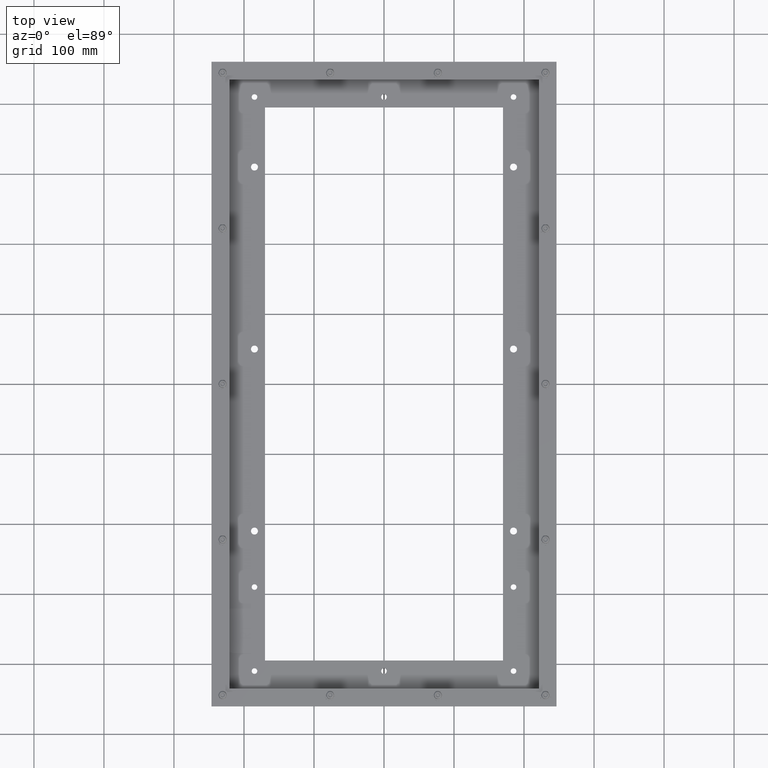
[diagram: clean part render]
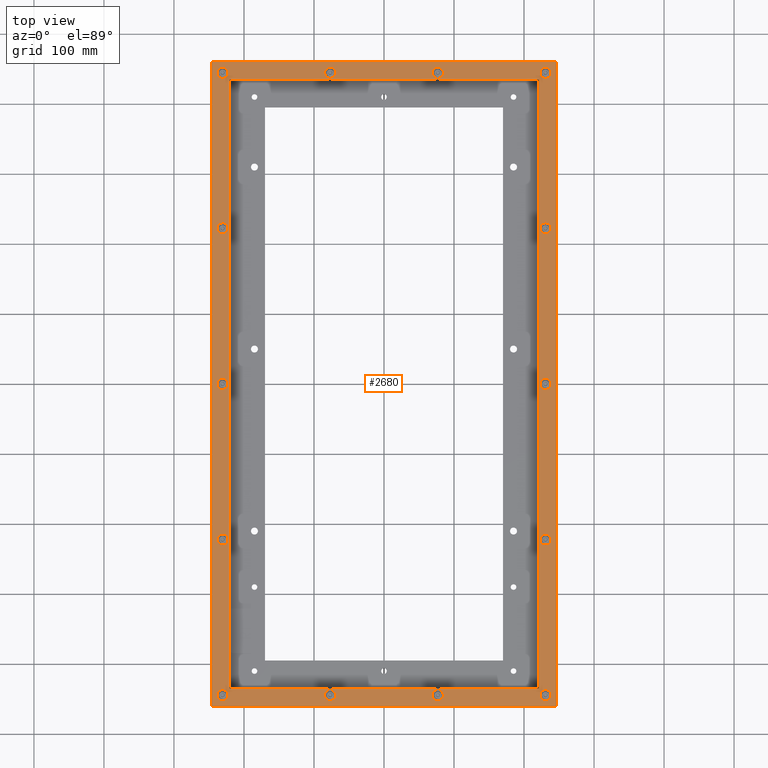
[diagram: same view with one face highlighted and labeled with its STEP entity id]
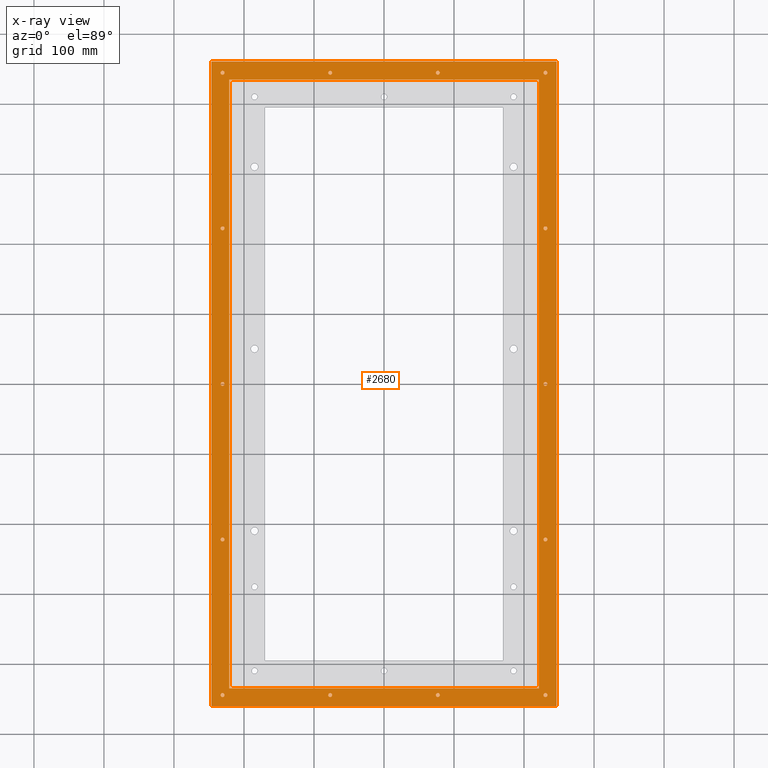
[diagram: x-ray of the same camera — body ghosted, the highlighted face saturated]
A machine part, top view. The second image highlights one B-rep face of the part: STEP entity #2680.
The next image is the same camera in x-ray: the body ghosted, the highlighted face saturated — about 0% of this face is hidden behind the body in this view.
In plain terms, the highlighted planar face has unit normal (0, 0, 1).
Its self-contained STEP definition (entity closure, byte-faithful):
#257=FACE_BOUND('',#833,.T.);
#258=FACE_BOUND('',#834,.T.);
#259=FACE_BOUND('',#835,.T.);
#260=FACE_BOUND('',#836,.T.);
#261=FACE_BOUND('',#837,.T.);
#262=FACE_BOUND('',#838,.T.);
#263=FACE_BOUND('',#839,.T.);
#264=FACE_BOUND('',#840,.T.);
#265=FACE_BOUND('',#841,.T.);
#266=FACE_BOUND('',#842,.T.);
#267=FACE_BOUND('',#843,.T.);
#268=FACE_BOUND('',#844,.T.);
#269=FACE_BOUND('',#845,.T.);
#270=FACE_BOUND('',#846,.T.);
#271=FACE_BOUND('',#847,.T.);
#376=CIRCLE('',#2876,0.109375);
#378=CIRCLE('',#2879,0.109375);
#380=CIRCLE('',#2882,0.109375);
#382=CIRCLE('',#2885,0.109375);
#384=CIRCLE('',#2888,0.109375);
#386=CIRCLE('',#2891,0.109375);
#388=CIRCLE('',#2894,0.109375);
#390=CIRCLE('',#2897,0.109375);
#392=CIRCLE('',#2900,0.109375);
#394=CIRCLE('',#2903,0.109375);
#396=CIRCLE('',#2906,0.109375);
#398=CIRCLE('',#2909,0.109375);
#400=CIRCLE('',#2912,0.109375);
#402=CIRCLE('',#2915,0.109375);
#581=FACE_OUTER_BOUND('',#832,.T.);
#832=EDGE_LOOP('',(#2036,#2037,#2038,#2039));
#833=EDGE_LOOP('',(#2040));
#834=EDGE_LOOP('',(#2041));
#835=EDGE_LOOP('',(#2042));
#836=EDGE_LOOP('',(#2043));
#837=EDGE_LOOP('',(#2044));
#838=EDGE_LOOP('',(#2045));
#839=EDGE_LOOP('',(#2046));
#840=EDGE_LOOP('',(#2047));
#841=EDGE_LOOP('',(#2048));
#842=EDGE_LOOP('',(#2049));
#843=EDGE_LOOP('',(#2050));
#844=EDGE_LOOP('',(#2051));
#845=EDGE_LOOP('',(#2052));
#846=EDGE_LOOP('',(#2053));
#847=EDGE_LOOP('',(#2054,#2055,#2056,#2057));
#1009=LINE('',#4147,#1150);
#1013=LINE('',#4155,#1154);
#1016=LINE('',#4161,#1157);
#1019=LINE('',#4166,#1160);
#1021=LINE('',#4171,#1162);
#1025=LINE('',#4179,#1166);
#1028=LINE('',#4185,#1169);
#1031=LINE('',#4190,#1172);
#1150=VECTOR('',#3401,34.25);
#1154=VECTOR('',#3407,17.40625);
#1157=VECTOR('',#3412,34.25);
#1160=VECTOR('',#3417,17.40625);
#1162=VECTOR('',#3421,36.25);
#1166=VECTOR('',#3427,19.40625);
#1169=VECTOR('',#3432,36.25);
#1172=VECTOR('',#3437,19.40625);
#1340=VERTEX_POINT('',#4077);
#1342=VERTEX_POINT('',#4082);
#1344=VERTEX_POINT('',#4087);
#1346=VERTEX_POINT('',#4092);
#1348=VERTEX_POINT('',#4097);
#1350=VERTEX_POINT('',#4102);
#1352=VERTEX_POINT('',#4107);
#1354=VERTEX_POINT('',#4112);
#1356=VERTEX_POINT('',#4117);
#1358=VERTEX_POINT('',#4122);
#1360=VERTEX_POINT('',#4127);
#1362=VERTEX_POINT('',#4132);
#1364=VERTEX_POINT('',#4137);
#1366=VERTEX_POINT('',#4142);
#1367=VERTEX_POINT('',#4145);
#1368=VERTEX_POINT('',#4146);
#1371=VERTEX_POINT('',#4154);
#1373=VERTEX_POINT('',#4160);
#1375=VERTEX_POINT('',#4169);
#1376=VERTEX_POINT('',#4170);
#1379=VERTEX_POINT('',#4178);
#1381=VERTEX_POINT('',#4184);
#1588=EDGE_CURVE('',#1340,#1340,#376,.T.);
#1590=EDGE_CURVE('',#1342,#1342,#378,.T.);
#1592=EDGE_CURVE('',#1344,#1344,#380,.T.);
#1594=EDGE_CURVE('',#1346,#1346,#382,.T.);
#1596=EDGE_CURVE('',#1348,#1348,#384,.T.);
#1598=EDGE_CURVE('',#1350,#1350,#386,.T.);
#1600=EDGE_CURVE('',#1352,#1352,#388,.T.);
#1602=EDGE_CURVE('',#1354,#1354,#390,.T.);
#1604=EDGE_CURVE('',#1356,#1356,#392,.T.);
#1606=EDGE_CURVE('',#1358,#1358,#394,.T.);
#1608=EDGE_CURVE('',#1360,#1360,#396,.T.);
#1610=EDGE_CURVE('',#1362,#1362,#398,.T.);
#1612=EDGE_CURVE('',#1364,#1364,#400,.T.);
#1614=EDGE_CURVE('',#1366,#1366,#402,.T.);
#1615=EDGE_CURVE('',#1367,#1368,#1009,.T.);
#1619=EDGE_CURVE('',#1368,#1371,#1013,.T.);
#1622=EDGE_CURVE('',#1371,#1373,#1016,.T.);
#1625=EDGE_CURVE('',#1373,#1367,#1019,.T.);
#1627=EDGE_CURVE('',#1375,#1376,#1021,.T.);
#1631=EDGE_CURVE('',#1376,#1379,#1025,.T.);
#1634=EDGE_CURVE('',#1379,#1381,#1028,.T.);
#1637=EDGE_CURVE('',#1381,#1375,#1031,.T.);
#2036=ORIENTED_EDGE('',*,*,#1627,.F.);
#2037=ORIENTED_EDGE('',*,*,#1637,.F.);
#2038=ORIENTED_EDGE('',*,*,#1634,.F.);
#2039=ORIENTED_EDGE('',*,*,#1631,.F.);
#2040=ORIENTED_EDGE('',*,*,#1588,.T.);
#2041=ORIENTED_EDGE('',*,*,#1590,.T.);
#2042=ORIENTED_EDGE('',*,*,#1592,.T.);
#2043=ORIENTED_EDGE('',*,*,#1594,.T.);
#2044=ORIENTED_EDGE('',*,*,#1596,.T.);
#2045=ORIENTED_EDGE('',*,*,#1598,.T.);
#2046=ORIENTED_EDGE('',*,*,#1600,.T.);
#2047=ORIENTED_EDGE('',*,*,#1602,.T.);
#2048=ORIENTED_EDGE('',*,*,#1604,.T.);
#2049=ORIENTED_EDGE('',*,*,#1606,.T.);
#2050=ORIENTED_EDGE('',*,*,#1608,.T.);
#2051=ORIENTED_EDGE('',*,*,#1610,.T.);
#2052=ORIENTED_EDGE('',*,*,#1612,.T.);
#2053=ORIENTED_EDGE('',*,*,#1614,.T.);
#2054=ORIENTED_EDGE('',*,*,#1615,.T.);
#2055=ORIENTED_EDGE('',*,*,#1619,.T.);
#2056=ORIENTED_EDGE('',*,*,#1622,.T.);
#2057=ORIENTED_EDGE('',*,*,#1625,.T.);
#2452=PLANE('',#2924);
#2680=ADVANCED_FACE('',(#581,#257,#258,#259,#260,#261,#262,#263,#264,#265,
#266,#267,#268,#269,#270,#271),#2452,.T.);
#2876=AXIS2_PLACEMENT_3D('',#4078,#3319,#3320);
#2879=AXIS2_PLACEMENT_3D('',#4083,#3325,#3326);
#2882=AXIS2_PLACEMENT_3D('',#4088,#3331,#3332);
#2885=AXIS2_PLACEMENT_3D('',#4093,#3337,#3338);
#2888=AXIS2_PLACEMENT_3D('',#4098,#3343,#3344);
#2891=AXIS2_PLACEMENT_3D('',#4103,#3349,#3350);
#2894=AXIS2_PLACEMENT_3D('',#4108,#3355,#3356);
#2897=AXIS2_PLACEMENT_3D('',#4113,#3361,#3362);
#2900=AXIS2_PLACEMENT_3D('',#4118,#3367,#3368);
#2903=AXIS2_PLACEMENT_3D('',#4123,#3373,#3374);
#2906=AXIS2_PLACEMENT_3D('',#4128,#3379,#3380);
#2909=AXIS2_PLACEMENT_3D('',#4133,#3385,#3386);
#2912=AXIS2_PLACEMENT_3D('',#4138,#3391,#3392);
#2915=AXIS2_PLACEMENT_3D('',#4143,#3397,#3398);
#2924=AXIS2_PLACEMENT_3D('',#4192,#3439,#3440);
#3319=DIRECTION('center_axis',(0.,0.,-1.));
#3320=DIRECTION('ref_axis',(-1.,0.,0.));
#3325=DIRECTION('center_axis',(0.,0.,-1.));
#3326=DIRECTION('ref_axis',(-1.,0.,0.));
#3331=DIRECTION('center_axis',(0.,0.,-1.));
#3332=DIRECTION('ref_axis',(-1.,0.,0.));
#3337=DIRECTION('center_axis',(0.,0.,-1.));
#3338=DIRECTION('ref_axis',(-1.,0.,0.));
#3343=DIRECTION('center_axis',(0.,0.,-1.));
#3344=DIRECTION('ref_axis',(-1.,0.,0.));
#3349=DIRECTION('center_axis',(0.,0.,-1.));
#3350=DIRECTION('ref_axis',(-1.,0.,0.));
#3355=DIRECTION('center_axis',(0.,0.,-1.));
#3356=DIRECTION('ref_axis',(-1.,0.,0.));
#3361=DIRECTION('center_axis',(0.,0.,-1.));
#3362=DIRECTION('ref_axis',(-1.,0.,0.));
#3367=DIRECTION('center_axis',(0.,0.,-1.));
#3368=DIRECTION('ref_axis',(-1.,0.,0.));
#3373=DIRECTION('center_axis',(0.,0.,-1.));
#3374=DIRECTION('ref_axis',(-1.,0.,0.));
#3379=DIRECTION('center_axis',(0.,0.,-1.));
#3380=DIRECTION('ref_axis',(-1.,0.,0.));
#3385=DIRECTION('center_axis',(0.,0.,-1.));
#3386=DIRECTION('ref_axis',(-1.,0.,0.));
#3391=DIRECTION('center_axis',(0.,0.,-1.));
#3392=DIRECTION('ref_axis',(-1.,0.,0.));
#3397=DIRECTION('center_axis',(0.,0.,-1.));
#3398=DIRECTION('ref_axis',(-1.,0.,0.));
#3401=DIRECTION('',(2.45028818585011E-16,-1.,0.));
#3407=DIRECTION('',(-1.,-3.21426194098351E-16,0.));
#3412=DIRECTION('',(-6.53410182893362E-16,1.,0.));
#3417=DIRECTION('',(1.,8.03565485245876E-17,0.));
#3421=DIRECTION('',(3.85849978691339E-16,-1.,0.));
#3427=DIRECTION('',(-1.,-4.32450217663723E-16,0.));
#3432=DIRECTION('',(-4.63019974429606E-16,1.,0.));
#3437=DIRECTION('',(1.,0.,0.));
#3439=DIRECTION('center_axis',(0.,0.,1.));
#3440=DIRECTION('ref_axis',(1.,0.,0.));
#4077=CARTESIAN_POINT('',(16.484747905634,-23.9195957777929,0.125));
#4078=CARTESIAN_POINT('Origin',(16.375372905634,-23.9195957777929,0.125));
#4082=CARTESIAN_POINT('',(10.4326645723007,-23.9195957777929,0.125));
#4083=CARTESIAN_POINT('Origin',(10.3232895723007,-23.9195957777929,0.125));
#4087=CARTESIAN_POINT('',(4.38058123896738,-23.9195957777929,0.125));
#4088=CARTESIAN_POINT('Origin',(4.27120623896738,-23.9195957777929,0.125));
#4092=CARTESIAN_POINT('',(-1.67150209436595,-23.9195957777929,0.125));
#4093=CARTESIAN_POINT('Origin',(-1.78087709436595,-23.9195957777929,0.125));
#4097=CARTESIAN_POINT('',(16.484747905634,-15.1695957777929,0.125));
#4098=CARTESIAN_POINT('Origin',(16.375372905634,-15.1695957777929,0.125));
#4102=CARTESIAN_POINT('',(-1.67150209436596,-15.1695957777929,0.125));
#4103=CARTESIAN_POINT('Origin',(-1.78087709436596,-15.1695957777929,0.125));
#4107=CARTESIAN_POINT('',(16.484747905634,-6.41959577779295,0.125));
#4108=CARTESIAN_POINT('Origin',(16.375372905634,-6.41959577779295,0.125));
#4112=CARTESIAN_POINT('',(-1.67150209436596,-6.41959577779295,0.125));
#4113=CARTESIAN_POINT('Origin',(-1.78087709436596,-6.41959577779295,0.125));
#4117=CARTESIAN_POINT('',(16.484747905634,2.33040422220705,0.125));
#4118=CARTESIAN_POINT('Origin',(16.375372905634,2.33040422220705,0.125));
#4122=CARTESIAN_POINT('',(-1.67150209436596,2.33040422220705,0.125));
#4123=CARTESIAN_POINT('Origin',(-1.78087709436596,2.33040422220705,0.125));
#4127=CARTESIAN_POINT('',(16.484747905634,11.0804042222071,0.125));
#4128=CARTESIAN_POINT('Origin',(16.375372905634,11.0804042222071,0.125));
#4132=CARTESIAN_POINT('',(10.4326645723007,11.0804042222071,0.125));
#4133=CARTESIAN_POINT('Origin',(10.3232895723007,11.0804042222071,0.125));
#4137=CARTESIAN_POINT('',(4.38058123896737,11.0804042222071,0.125));
#4138=CARTESIAN_POINT('Origin',(4.27120623896737,11.0804042222071,0.125));
#4142=CARTESIAN_POINT('',(-1.67150209436597,11.0804042222071,0.125));
#4143=CARTESIAN_POINT('Origin',(-1.78087709436597,11.0804042222071,0.125));
#4145=CARTESIAN_POINT('',(16.000372905634,10.7054042222071,0.125));
#4146=CARTESIAN_POINT('',(16.000372905634,-23.5445957777929,0.125));
#4147=CARTESIAN_POINT('',(16.000372905634,2.14290422220705,0.125));
#4154=CARTESIAN_POINT('',(-1.40587709436595,-23.544595777793,0.125));
#4155=CARTESIAN_POINT('',(11.648810405634,-23.5445957777929,0.125));
#4160=CARTESIAN_POINT('',(-1.40587709436597,10.7054042222071,0.125));
#4161=CARTESIAN_POINT('',(-1.40587709436596,-14.982095777793,0.125));
#4166=CARTESIAN_POINT('',(2.94568540563403,10.7054042222071,0.125));
#4169=CARTESIAN_POINT('',(17.000372905634,11.7054042222071,0.125));
#4170=CARTESIAN_POINT('',(17.000372905634,-24.5445957777929,0.125));
#4171=CARTESIAN_POINT('',(17.000372905634,11.7054042222071,0.125));
#4178=CARTESIAN_POINT('',(-2.40587709436595,-24.544595777793,0.125));
#4179=CARTESIAN_POINT('',(17.000372905634,-24.5445957777929,0.125));
#4184=CARTESIAN_POINT('',(-2.40587709436597,11.7054042222071,0.125));
#4185=CARTESIAN_POINT('',(-2.40587709436595,-24.544595777793,0.125));
#4190=CARTESIAN_POINT('',(-2.40587709436597,11.7054042222071,0.125));
#4192=CARTESIAN_POINT('Origin',(7.29724790563404,-6.41959577779295,0.125));